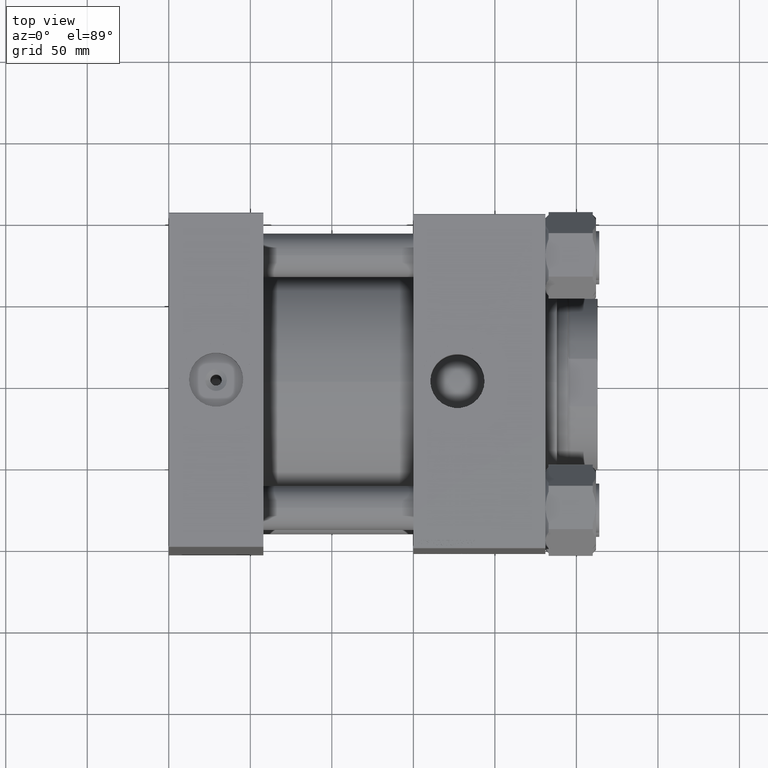
[diagram: clean part render]
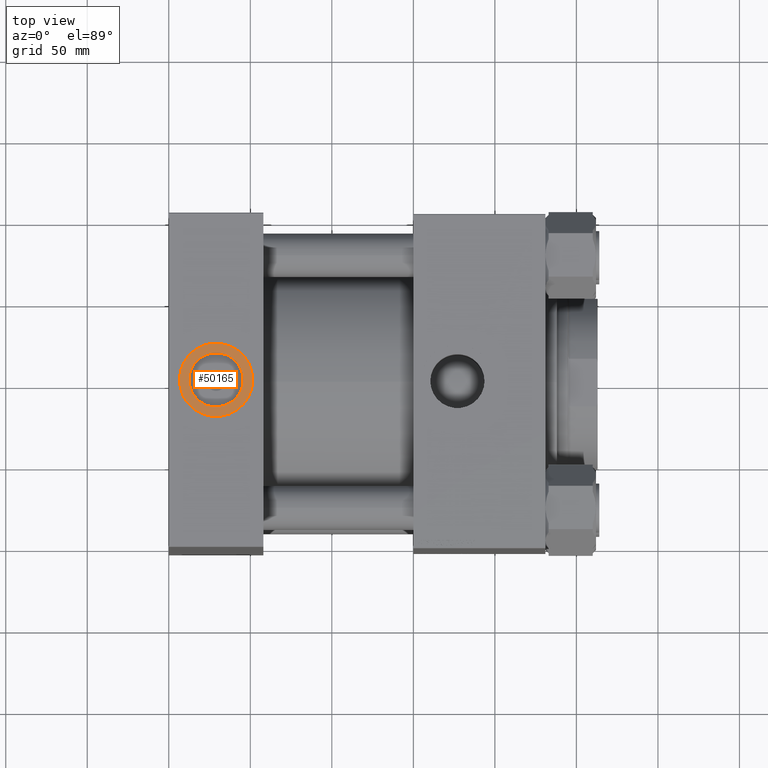
[diagram: same view with one face highlighted and labeled with its STEP entity id]
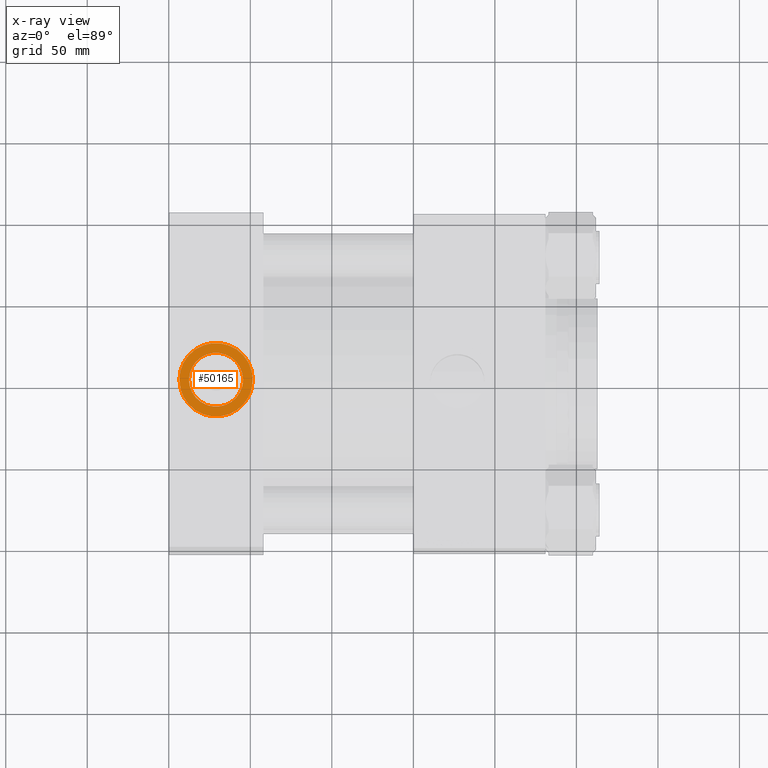
[diagram: x-ray of the same camera — body ghosted, the highlighted face saturated]
A machine part, top view. The second image highlights one B-rep face of the part: STEP entity #50165.
The next image is the same camera in x-ray: the body ghosted, the highlighted face saturated — about 0% of this face is hidden behind the body in this view.
In plain terms, the highlighted planar face has unit normal (0, 0, 1).
Its self-contained STEP definition (entity closure, byte-faithful):
#1404 = DIRECTION ( 'NONE',  ( 1.000000000000000000, 0.000000000000000000, -0.000000000000000000 ) ) ;
#1582 = AXIS2_PLACEMENT_3D ( 'NONE', #49701, #45091, #18019 ) ;
#2093 = ORIENTED_EDGE ( 'NONE', *, *, #17257, .T. ) ;
#2684 = ORIENTED_EDGE ( 'NONE', *, *, #6388, .F. ) ;
#4422 = EDGE_CURVE ( 'NONE', #15698, #47210, #30620, .T. ) ;
#6304 = DIRECTION ( 'NONE',  ( 0.000000000000000000, 0.000000000000000000, 1.000000000000000000 ) ) ;
#6388 = EDGE_CURVE ( 'NONE', #10265, #13478, #7838, .T. ) ;
#6914 = CIRCLE ( 'NONE', #19955, 22.50000000000000355 ) ;
#7838 = CIRCLE ( 'NONE', #33089, 16.62000000000000099 ) ;
#8699 = ORIENTED_EDGE ( 'NONE', *, *, #4422, .T. ) ;
#9055 = DIRECTION ( 'NONE',  ( 1.000000000000000000, 0.000000000000000000, 0.000000000000000000 ) ) ;
#9074 = FACE_BOUND ( 'NONE', #9582, .T. ) ;
#9582 = EDGE_LOOP ( 'NONE', ( #2684, #28484 ) ) ;
#10265 = VERTEX_POINT ( 'NONE', #27007 ) ;
#10377 = CARTESIAN_POINT ( 'NONE',  ( 29.00000000000000000, -1.490169776192759932E-14, 148.2999999999999545 ) ) ;
#12807 = CARTESIAN_POINT ( 'NONE',  ( 29.00000000000000000, -1.490169776192759932E-14, 148.2999999999999545 ) ) ;
#12993 = CIRCLE ( 'NONE', #1582, 16.62000000000000099 ) ;
#13478 = VERTEX_POINT ( 'NONE', #17141 ) ;
#15698 = VERTEX_POINT ( 'NONE', #31384 ) ;
#17141 = CARTESIAN_POINT ( 'NONE',  ( 12.38000000000000256, -1.286633478174469851E-14, 148.2999999999999545 ) ) ;
#17246 = PLANE ( 'NONE',  #48839 ) ;
#17257 = EDGE_CURVE ( 'NONE', #47210, #15698, #6914, .T. ) ;
#18019 = DIRECTION ( 'NONE',  ( 1.000000000000000000, 0.000000000000000000, 0.000000000000000000 ) ) ;
#18050 = DIRECTION ( 'NONE',  ( 1.000000000000000000, 0.000000000000000000, 0.000000000000000000 ) ) ;
#19955 = AXIS2_PLACEMENT_3D ( 'NONE', #24390, #24885, #9055 ) ;
#20808 = CARTESIAN_POINT ( 'NONE',  ( 29.00000000000000000, -1.490169776192759932E-14, 148.2999999999999545 ) ) ;
#23284 = AXIS2_PLACEMENT_3D ( 'NONE', #10377, #6304, #18050 ) ;
#24390 = CARTESIAN_POINT ( 'NONE',  ( 29.00000000000000000, -1.490169776192759932E-14, 148.2999999999999545 ) ) ;
#24885 = DIRECTION ( 'NONE',  ( 0.000000000000000000, 0.000000000000000000, 1.000000000000000000 ) ) ;
#27007 = CARTESIAN_POINT ( 'NONE',  ( 45.61999999999999744, -1.490169776192759932E-14, 148.2999999999999545 ) ) ;
#28484 = ORIENTED_EDGE ( 'NONE', *, *, #36335, .F. ) ;
#30620 = CIRCLE ( 'NONE', #23284, 22.50000000000000355 ) ;
#31384 = CARTESIAN_POINT ( 'NONE',  ( 51.50000000000000711, -1.490169776192759932E-14, 148.2999999999999545 ) ) ;
#31990 = DIRECTION ( 'NONE',  ( 1.000000000000000000, 0.000000000000000000, 0.000000000000000000 ) ) ;
#32825 = DIRECTION ( 'NONE',  ( 0.000000000000000000, 0.000000000000000000, 1.000000000000000000 ) ) ;
#33089 = AXIS2_PLACEMENT_3D ( 'NONE', #12807, #43497, #31990 ) ;
#36335 = EDGE_CURVE ( 'NONE', #13478, #10265, #12993, .T. ) ;
#36591 = CARTESIAN_POINT ( 'NONE',  ( 6.499999999999995559, -1.214624246384605376E-14, 148.2999999999999545 ) ) ;
#40005 = EDGE_LOOP ( 'NONE', ( #8699, #2093 ) ) ;
#40231 = FACE_OUTER_BOUND ( 'NONE', #40005, .T. ) ;
#43497 = DIRECTION ( 'NONE',  ( 0.000000000000000000, 0.000000000000000000, 1.000000000000000000 ) ) ;
#45091 = DIRECTION ( 'NONE',  ( 0.000000000000000000, 0.000000000000000000, 1.000000000000000000 ) ) ;
#47210 = VERTEX_POINT ( 'NONE', #36591 ) ;
#48839 = AXIS2_PLACEMENT_3D ( 'NONE', #20808, #32825, #1404 ) ;
#49701 = CARTESIAN_POINT ( 'NONE',  ( 29.00000000000000000, -1.490169776192759932E-14, 148.2999999999999545 ) ) ;
#50165 = ADVANCED_FACE ( 'NONE', ( #9074, #40231 ), #17246, .T. ) ;